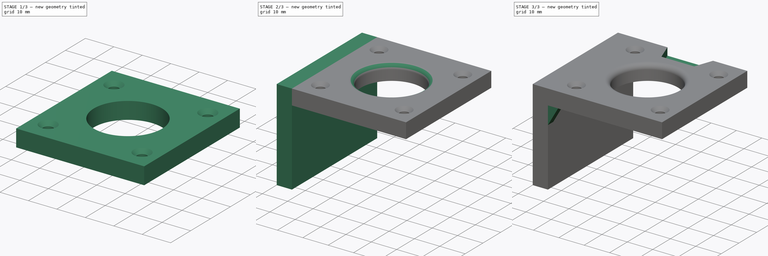
[diagram: build sequence overview — one tinted view per stage of 3, left to right]
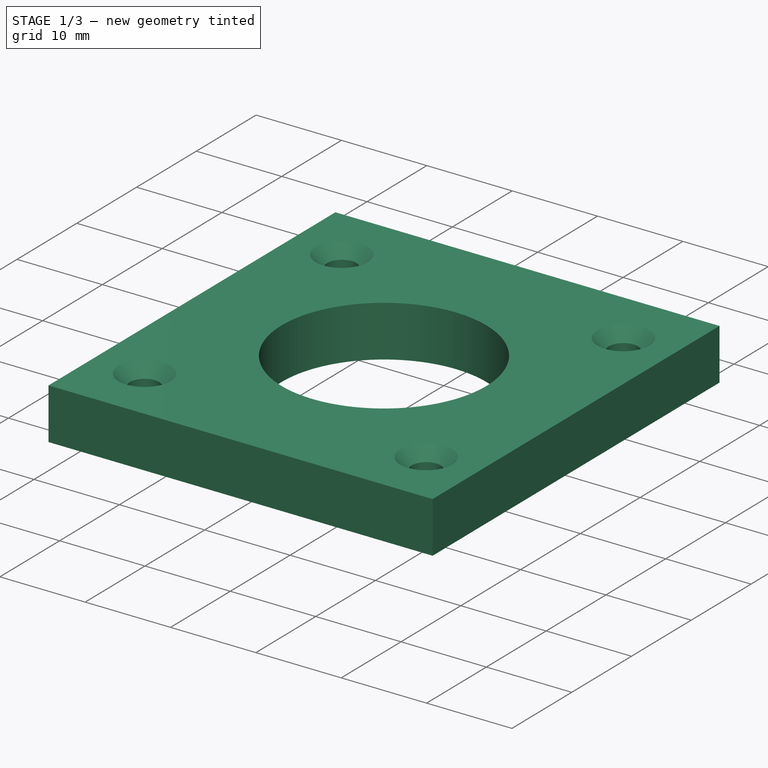
[diagram: stage 1 of 3 — iso view after this stage's code; geometry added in this stage tinted green]
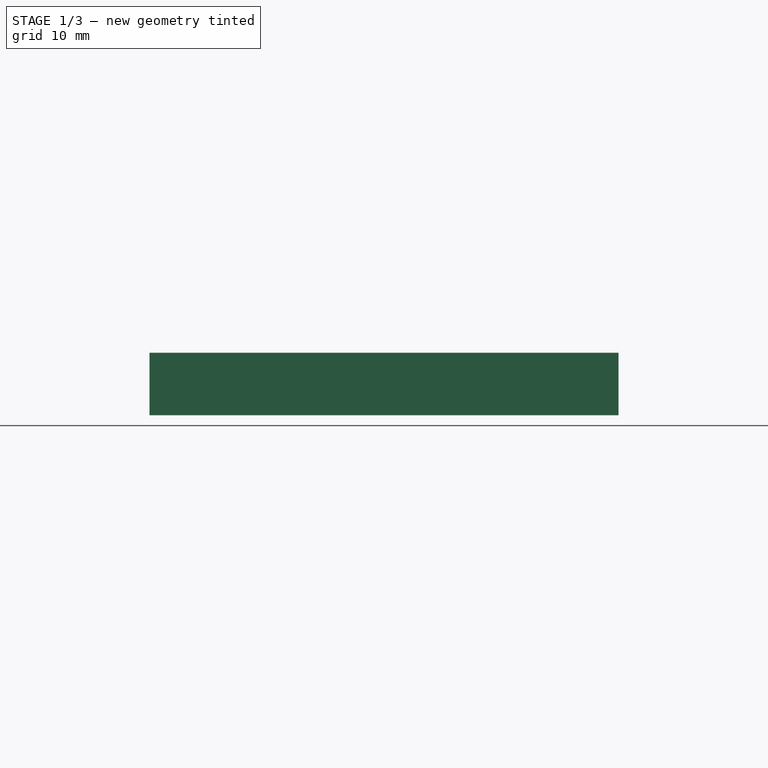
[diagram: stage 1 of 3 — front view after this stage's code; geometry added in this stage tinted green]
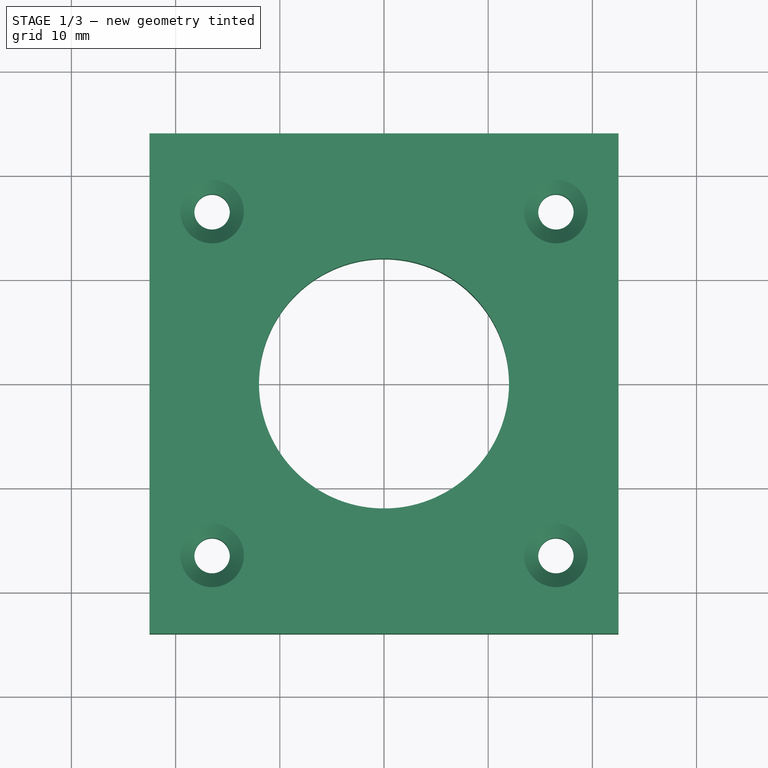
[diagram: stage 1 of 3 — top view after this stage's code; geometry added in this stage tinted green]
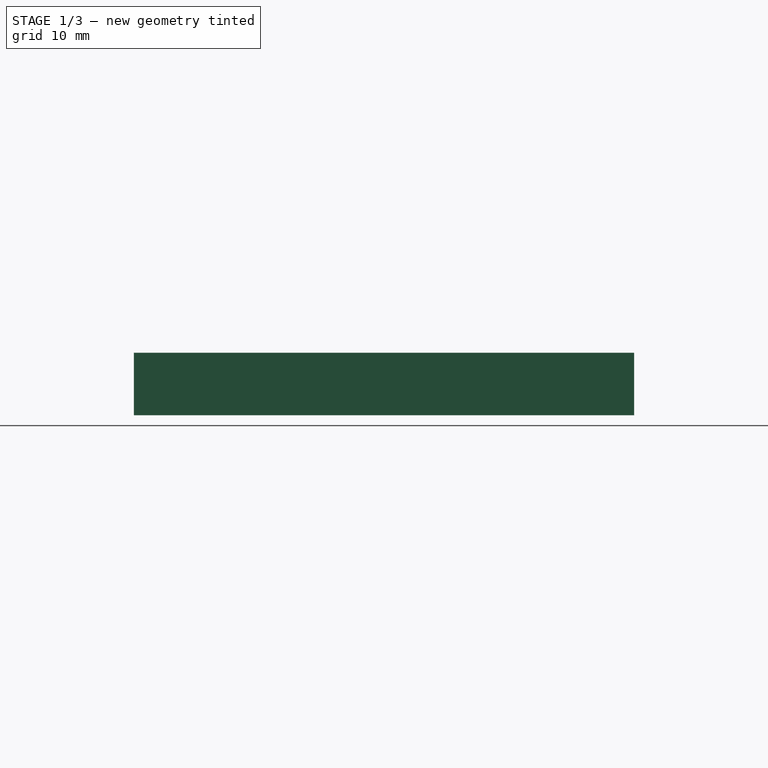
[diagram: stage 1 of 3 — right view after this stage's code; geometry added in this stage tinted green]
FCSTD DOCUMENT  (FreeCAD 0.22R38334 (Git))
Label: MH002
License: All rights reserved
LicenseURL: http://en.wikipedia.org/wiki/All_rights_reserved
objects: Sketcher::SketchObject×7, PartDesign::SubShapeBinder×4, PartDesign::Body×4, PartDesign::Pad×3, PartDesign::Pocket×2, PartDesign::Hole×1, PartDesign::Mirrored×1, PartDesign::Fillet×1, App::Part×1
note: 45 computed .brp shape members not serialized (recipe doc carries the construction recipe); baked Part::Feature solids carry a one-line shape summary decoded from their .brp

FEATURE [PartDesign::SubShapeBinder] Binder006
  BindCopyOnChange = 0
  BindMode = 0
  ClaimChildren = false
  Context = -> Part001 [Body005.Binder006.]
  Fuse = false
  MakeFace = true
  OffsetFill = false
  OffsetIntersection = false
  OffsetJoinType = 0
  OffsetOpenResult = false
  PartialLoad = false
  Relative = true
  Support = -> [Body004[Sketch008.]]
  _Version = 2
FEATURE [PartDesign::SubShapeBinder] Binder007
  BindCopyOnChange = 0
  BindMode = 0
  ClaimChildren = false
  Context = -> Part001 [Body006.Binder007.]
  Fuse = false
  MakeFace = true
  OffsetFill = false
  OffsetIntersection = false
  OffsetJoinType = 0
  OffsetOpenResult = false
  PartialLoad = false
  Relative = true
  Support = -> [Body004[Sketch008.]]
  _Version = 2
FEATURE [PartDesign::SubShapeBinder] Binder008
  BindCopyOnChange = 0
  BindMode = 2
  ClaimChildren = false
  Context = -> Part001 [Body007.Binder008.]
  Fuse = false
  MakeFace = true
  OffsetFill = false
  OffsetIntersection = false
  OffsetJoinType = 0
  OffsetOpenResult = false
  PartialLoad = false
  Placement = pos=(-135.5,-24,0) rot=(-0.57735,0.57735,-0.57735;2.0944rad)
  Relative = true
  _Version = 2
FEATURE [PartDesign::SubShapeBinder] Binder009
  BindCopyOnChange = 0
  BindMode = 2
  ClaimChildren = false
  Context = -> Part001 [Body007.Binder009.]
  Fuse = false
  MakeFace = true
  OffsetFill = false
  OffsetIntersection = false
  OffsetJoinType = 0
  OffsetOpenResult = false
  PartialLoad = false
  Placement = pos=(-135.5,-24,0) rot=(-0.57735,0.57735,-0.57735;2.0944rad)
  Relative = true
  _Version = 2
FEATURE [PartDesign::Body] Body007
  AllowCompound = false
  Group = -> [Binder008]
  Origin = -> Origin009
FEATURE [PartDesign::Pad] Pad003
  Direction = (0,0,1)
  Length = 6
  Length2 = 10
  Profile = -> Binder006
  Suppressed = false
  Type = 0
FEATURE [Sketcher::SketchObject] Sketch008
  AttachmentSupport = -> [XY_Plane006]
  FullyConstrained = true
  MakeInternals = false
  MapMode = 5
  sketch-geometry (5):
    g0: LineSegment StartX=-22.5 StartY=-24 StartZ=0 EndX=22.5 EndY=-24 EndZ=0
    g1: LineSegment StartX=22.5 StartY=-24 StartZ=0 EndX=22.5 EndY=24 EndZ=0
    g2: LineSegment StartX=22.5 StartY=24 StartZ=0 EndX=-22.5 EndY=24 EndZ=0
    g3: LineSegment StartX=-22.5 StartY=24 StartZ=0 EndX=-22.5 EndY=-24 EndZ=0
    g4: GeomPoint X=0 Y=0 Z=0
  constraints (12):
    c: Coincident(g0,g1)
    c: Coincident(g1,g2)
    c: Coincident(g2,g3)
    c: Coincident(g3,g0)
    c: Horizontal(g0)
    c: Horizontal(g2)
    c: Vertical(g1)
    c: Vertical(g3)
    c: Symmetric(g2,g0,g4)
    c: Coincident(g4,g-1)
    c: DistanceY(g3,g3) = 48
    c: DistanceX(g2,g2) = 45
FEATURE [PartDesign::Body] Body004  label="Master001"
  AllowCompound = false
  Group = -> [Sketch008]
  Origin = -> Origin006
FEATURE [Sketcher::SketchObject] Sketch009
  AttachmentSupport = -> [Pad003]
  FullyConstrained = true
  MakeInternals = false
  MapMode = 5
  Placement = pos=(0,0,6) rot=(0,0,1;0rad)
  sketch-geometry (9):
    g0: LineSegment StartX=-16.5 StartY=-16.5 StartZ=0 EndX=16.5 EndY=-16.5 EndZ=0
    g1: LineSegment StartX=16.5 StartY=-16.5 StartZ=0 EndX=16.5 EndY=16.5 EndZ=0
    g2: LineSegment StartX=16.5 StartY=16.5 StartZ=0 EndX=-16.5 EndY=16.5 EndZ=0
    g3: LineSegment StartX=-16.5 StartY=16.5 StartZ=0 EndX=-16.5 EndY=-16.5 EndZ=0
    g4: GeomPoint X=0 Y=0 Z=0
    g5: Circle CenterX=-16.5 CenterY=16.5 CenterZ=0 NormalX=0 NormalY=0 NormalZ=1 AngleXU=0 Radius=1.5
    g6: Circle CenterX=-16.5 CenterY=-16.5 CenterZ=0 NormalX=0 NormalY=0 NormalZ=1 AngleXU=0 Radius=1.5
    g7: Circle CenterX=16.5 CenterY=-16.5 CenterZ=0 NormalX=0 NormalY=0 NormalZ=1 AngleXU=0 Radius=1.5
    g8: Circle CenterX=16.5 CenterY=16.5 CenterZ=0 NormalX=0 NormalY=0 NormalZ=1 AngleXU=0 Radius=1.5
  constraints (20):
    c: Coincident(g0,g1)
    c: Coincident(g1,g2)
    c: Coincident(g2,g3)
    c: Coincident(g3,g0)
    c: Horizontal(g0)
    c: Horizontal(g2)
    c: Vertical(g1)
    c: Vertical(g3)
    c: Symmetric(g2,g0,g4)
    c: Coincident(g4,g-1)
    c: Equal(g2,g3)
    c: DistanceX(g2,g2) = 33
    c: Coincident(g5,g2)
    c: Coincident(g6,g0)
    c: Coincident(g7,g0)
    c: Coincident(g8,g1)
    c: Equal(g5,g8)
    c: Equal(g8,g7)
    c: Equal(g7,g6)
    c: Diameter(g5) = 3
FEATURE [PartDesign::Hole] Hole002
  BaseFeature = -> Pad003
  CustomThreadClearance = 0
  Depth = 120.592
  DepthType = 1
  Diameter = 3.4
  DrillForDepth = false
  DrillPoint = 1
  DrillPointAngle = 118
  HoleCutCountersinkAngle = 90
  HoleCutCustomValues = false
  HoleCutDepth = 0
  HoleCutDiameter = 6.1
  HoleCutType = 2
  ModelThread = false
  Profile = -> Sketch009
  Suppressed = false
  Tapered = false
  TaperedAngle = 90
  ThreadClass = 0
  ThreadDepth = 120.592
  ThreadDepthType = 0
  ThreadDirection = 0
  ThreadFit = 0
  ThreadSize = 9
  ThreadType = 1
  Threaded = false
  UseCustomThreadClearance = false
FEATURE [Sketcher::SketchObject] Sketch013
  AttachmentSupport = -> [Hole002]
  ExternalGeometry = -> [Sketch009]
  FullyConstrained = true
  MakeInternals = false
  MapMode = 5
  Placement = pos=(0,0,6) rot=(0,0,1;0rad)
  sketch-geometry (1):
    g0: Circle CenterX=-2e-16 CenterY=2e-16 CenterZ=0 NormalX=0 NormalY=0 NormalZ=1 AngleXU=0 Radius=12
  constraints (2):
    c: Symmetric(g-3,g-4,g0)
    c: Diameter(g0) = 24
FEATURE [PartDesign::Pocket] Pocket003
  BaseFeature = -> Hole002
  Direction = (0,0,-1)
  Length = 5
  Length2 = 5
  Profile = -> Sketch013
  ReferenceAxis = -> Sketch013 [N_Axis]
  Suppressed = false
  Type = 1
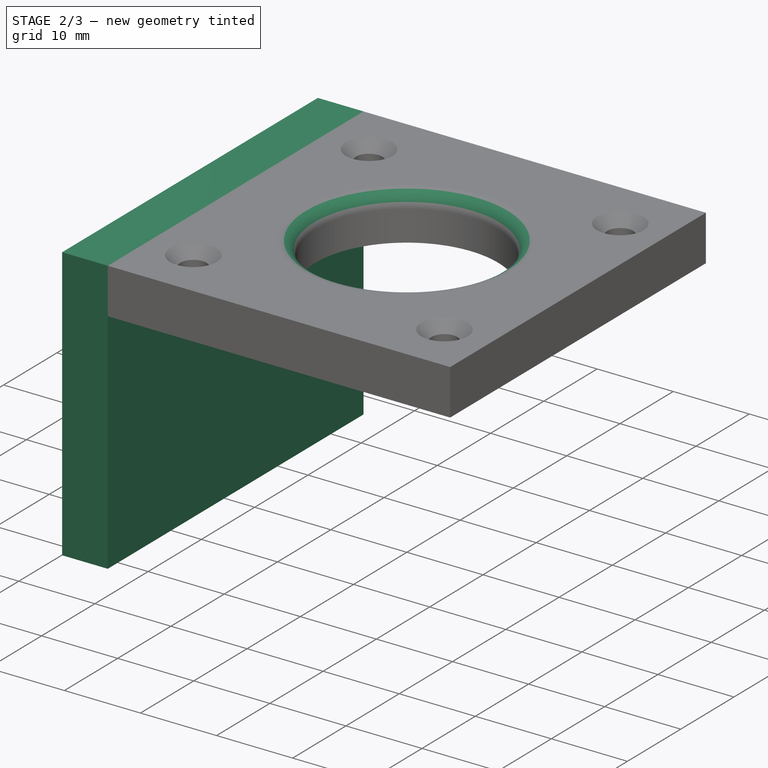
[diagram: stage 2 of 3 — iso view after this stage's code; geometry added in this stage tinted green]
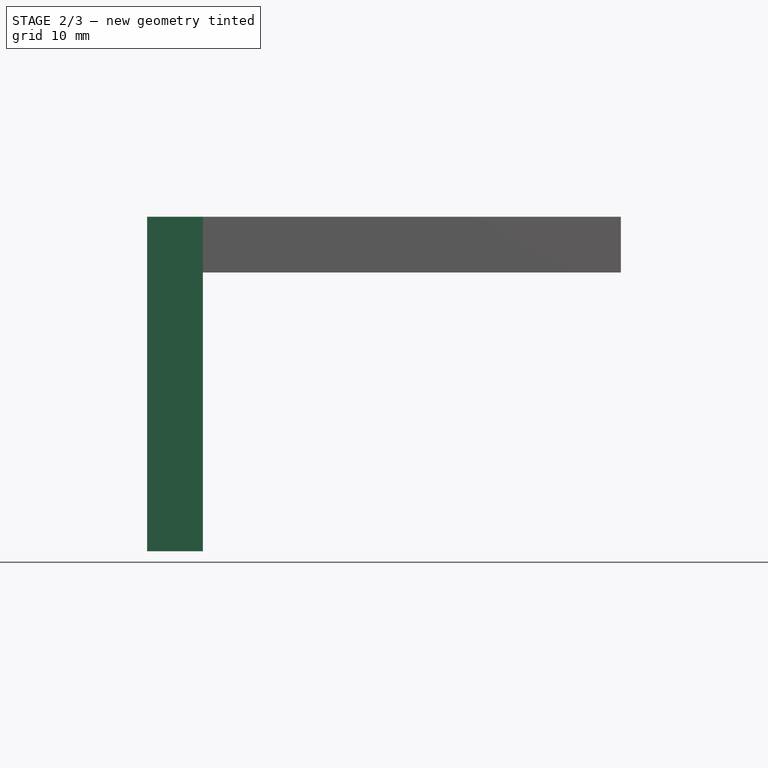
[diagram: stage 2 of 3 — front view after this stage's code; geometry added in this stage tinted green]
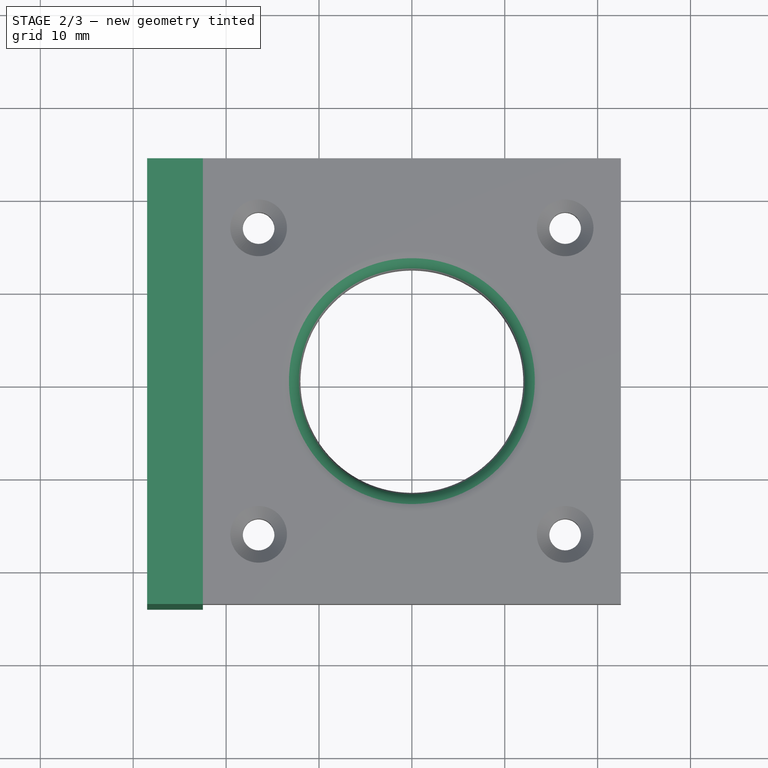
[diagram: stage 2 of 3 — top view after this stage's code; geometry added in this stage tinted green]
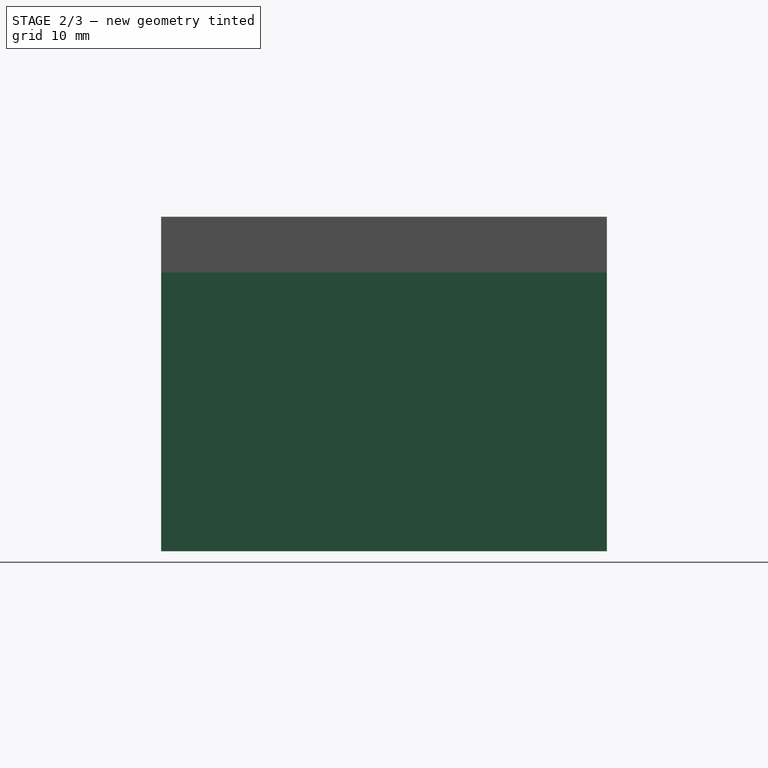
[diagram: stage 2 of 3 — right view after this stage's code; geometry added in this stage tinted green]
FEATURE [Sketcher::SketchObject] Sketch010
  AttachmentSupport = -> [Binder007]
  ExternalGeometry = -> [Binder007]
  FullyConstrained = true
  MakeInternals = false
  MapMode = 5
  sketch-geometry (4):
    g0: LineSegment StartX=-22.5 StartY=24 StartZ=0 EndX=-28.5 EndY=24 EndZ=0
    g1: LineSegment StartX=-28.5 StartY=24 StartZ=0 EndX=-28.5 EndY=-24 EndZ=0
    g2: LineSegment StartX=-28.5 StartY=-24 StartZ=0 EndX=-22.5 EndY=-24 EndZ=0
    g3: LineSegment StartX=-22.5 StartY=-24 StartZ=0 EndX=-22.5 EndY=24 EndZ=0
  constraints (10):
    c: Coincident(g0,g1)
    c: Coincident(g1,g2)
    c: Coincident(g2,g3)
    c: Coincident(g3,g0)
    c: Horizontal(g0)
    c: Horizontal(g2)
    c: Vertical(g1)
    c: Coincident(g0,g-3)
    c: Coincident(g2,g-3)
    c: DistanceX(g2,g2) = 6
FEATURE [PartDesign::Pad] Pad004
  Direction = (0,0,1)
  Length = 6
  Length2 = 30
  Profile = -> Sketch010
  ReferenceAxis = -> Sketch010 [N_Axis]
  Suppressed = false
  Type = 4
FEATURE [PartDesign::Fillet] Fillet001
  Base = -> Pocket003 [Edge21]
  BaseFeature = -> Pocket003
  Radius = 2
  SupportTransform = false
  Suppressed = false
  UseAllEdges = false
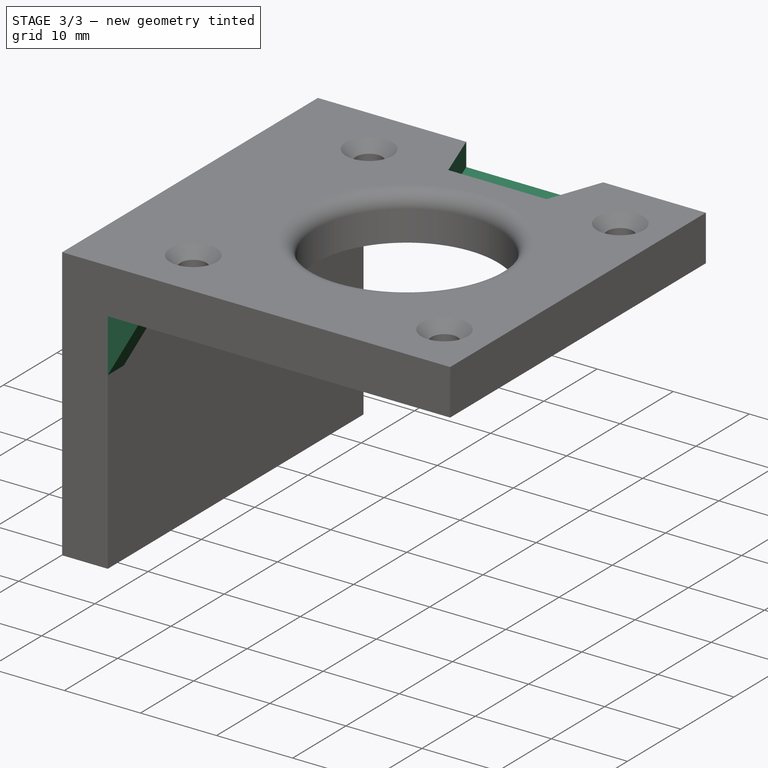
[diagram: stage 3 of 3 — iso view after this stage's code; geometry added in this stage tinted green]
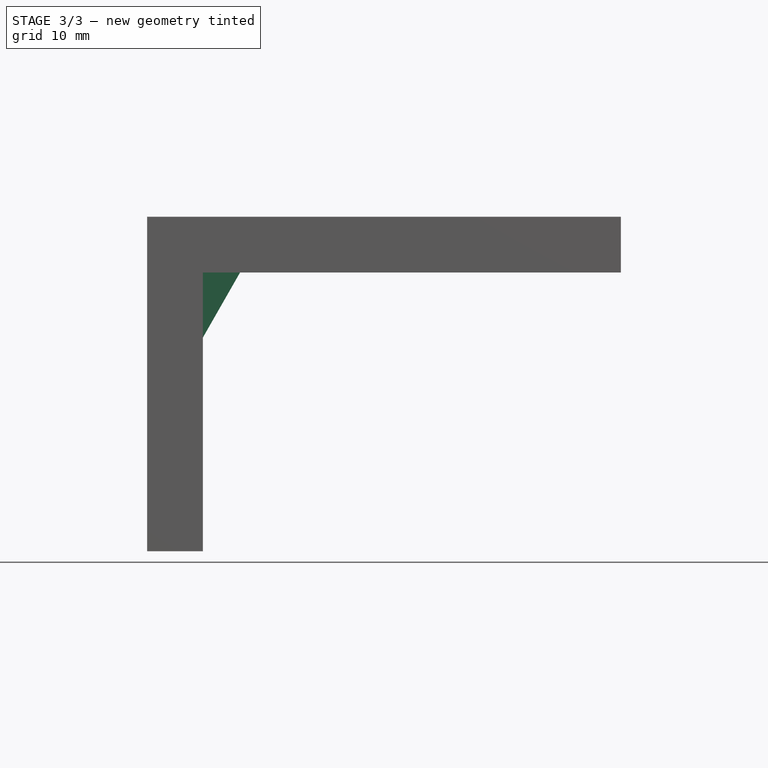
[diagram: stage 3 of 3 — front view after this stage's code; geometry added in this stage tinted green]
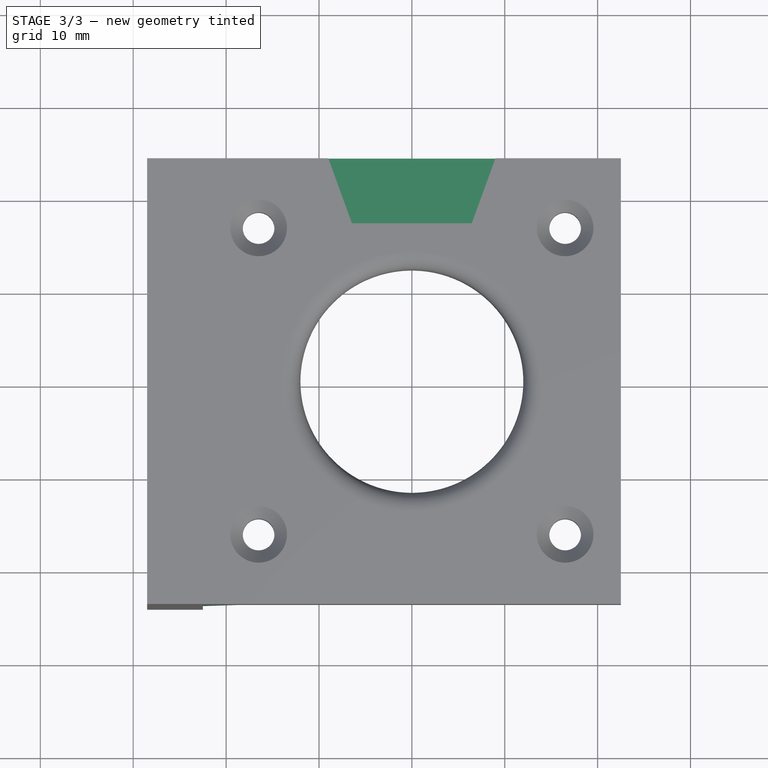
[diagram: stage 3 of 3 — top view after this stage's code; geometry added in this stage tinted green]
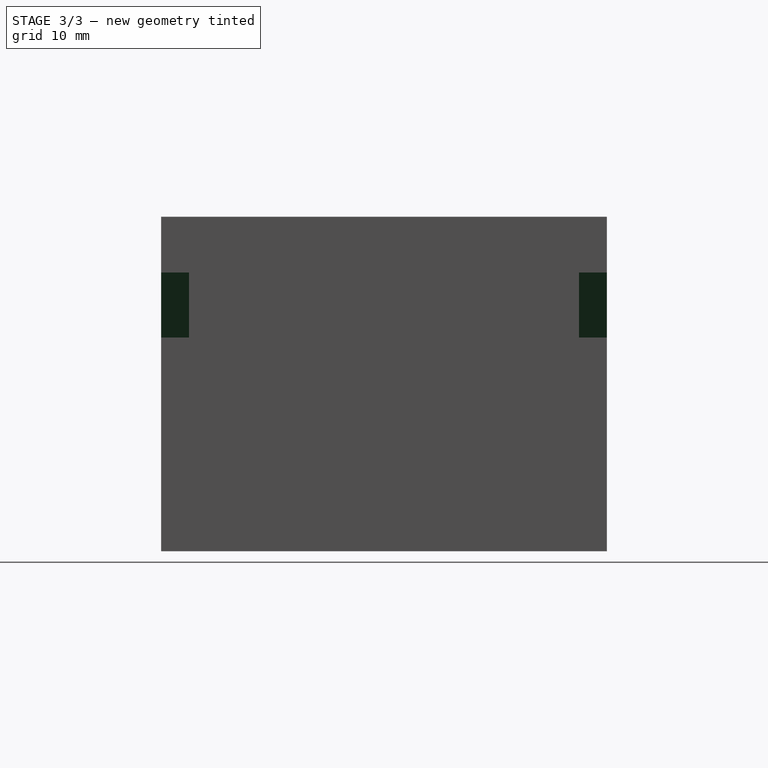
[diagram: stage 3 of 3 — right view after this stage's code; geometry added in this stage tinted green]
FEATURE [Sketcher::SketchObject] Sketch011
  AttachmentSupport = -> [Pad004]
  ExternalGeometry = -> [Binder007,Pad004]
  FullyConstrained = true
  MakeInternals = false
  MapMode = 5
  Placement = pos=(0,-24,0) rot=(1,0,0;1.5708rad)
  sketch-geometry (3):
    g0: LineSegment StartX=-22.5 StartY=0 StartZ=0 EndX=-22.5 EndY=-7 EndZ=0
    g1: LineSegment StartX=-22.5 StartY=-7 StartZ=0 EndX=-18.5 EndY=0 EndZ=0
    g2: LineSegment StartX=-18.5 StartY=0 StartZ=0 EndX=-22.5 EndY=0 EndZ=0
  constraints (9):
    c: Coincident(g0,g1)
    c: Coincident(g1,g2)
    c: DistanceX(g2,g2) = 4
    c: DistanceY(g0,g0) = 7
    c: PointOnObject(g0,g-4)
    c: Coincident(g2,g0)
    c: PointOnObject(g0,g-4)
    c: Horizontal(g2)
    c: PointOnObject(g1,g-1)
FEATURE [PartDesign::Pad] Pad005
  BaseFeature = -> Pad004
  Direction = (0,-1,2e-16)
  Length = 3
  Length2 = 10
  Profile = -> Sketch011
  ReferenceAxis = -> Sketch011 [N_Axis]
  Reversed = true
  Suppressed = false
  Type = 0
FEATURE [PartDesign::Mirrored] Mirrored001
  BaseFeature = -> Pad005
  MirrorPlane = -> XZ_Plane008
  Originals = -> [Pad005]
  Suppressed = false
  TransformMode = 0
FEATURE [Sketcher::SketchObject] Sketch014
  AttachmentSupport = -> [Fillet001]
  ExternalGeometry = -> [Fillet001]
  FullyConstrained = true
  MakeInternals = false
  MapMode = 5
  Placement = pos=(0,0,6) rot=(0,0,1;0rad)
  sketch-geometry (4):
    g0: LineSegment StartX=-9 StartY=24 StartZ=0 EndX=-6.45221 EndY=17 EndZ=0
    g1: LineSegment StartX=-6.45221 StartY=17 StartZ=0 EndX=6.45221 EndY=17 EndZ=0
    g2: LineSegment StartX=6.45221 StartY=17 StartZ=0 EndX=9 EndY=24 EndZ=0
    g3: LineSegment StartX=9 StartY=24 StartZ=0 EndX=-9 EndY=24 EndZ=0
  constraints (10):
    c: PointOnObject(g0,g-4)
    c: Coincident(g0,g1)
    c: Coincident(g1,g2)
    c: Coincident(g2,g3)
    c: Coincident(g3,g0)
    c: Angle(g1,g0) = 1.91986
    c: DistanceX(g3,g3) = 18
    c: Distance(g3,g1) = 7
    c: Symmetric(g0,g1,g-2)
    c: Symmetric(g0,g2,g-2)
FEATURE [PartDesign::Pocket] Pocket004
  BaseFeature = -> Fillet001
  Direction = (0,0,-1)
  Length = 3
  Length2 = 5
  Profile = -> Sketch014
  ReferenceAxis = -> Sketch014 [N_Axis]
  Suppressed = false
  Type = 0
FEATURE [PartDesign::Body] Body005
  AllowCompound = false
  Group = -> [Binder006,Pad003,Sketch009,Hole002,Sketch013,Pocket003,Fillet001,Sketch014,Pocket004]
  Origin = -> Origin007
  Tip = -> Pocket004
FEATURE [Sketcher::SketchObject] Sketch016
  AttachmentSupport = -> [Binder009]
  ExternalGeometry = -> [Binder009]
  FullyConstrained = true
  MakeInternals = false
  MapMode = 5
  Placement = pos=(-21,-24,3.81e-14) rot=(0.57735,-0.57735,0.57735;4.18879rad)
  sketch-geometry (2):
    g0: Circle CenterX=-32.5 CenterY=12.5 CenterZ=0 NormalX=0 NormalY=0 NormalZ=1 AngleXU=0 Radius=2
    g1: Circle CenterX=-8 CenterY=25.8112 CenterZ=0 NormalX=0 NormalY=0 NormalZ=1 AngleXU=0 Radius=2.65
  constraints (4):
    c: Coincident(g0,g-4)
    c: PointOnObject(g-4,g0)
    c: Coincident(g1,g-3)
    c: PointOnObject(g-3,g1)
FEATURE [PartDesign::Body] Body006
  AllowCompound = false
  Group = -> [Binder007,Sketch010,Pad004,Sketch011,Pad005,Mirrored001,Binder009,Sketch016]
  Origin = -> Origin008
  Tip = -> Mirrored001
FEATURE [App::Part] Part001  label="MH002"
  Group = -> [Body004,Body005,Body006,Body007]
  Origin = -> Origin005
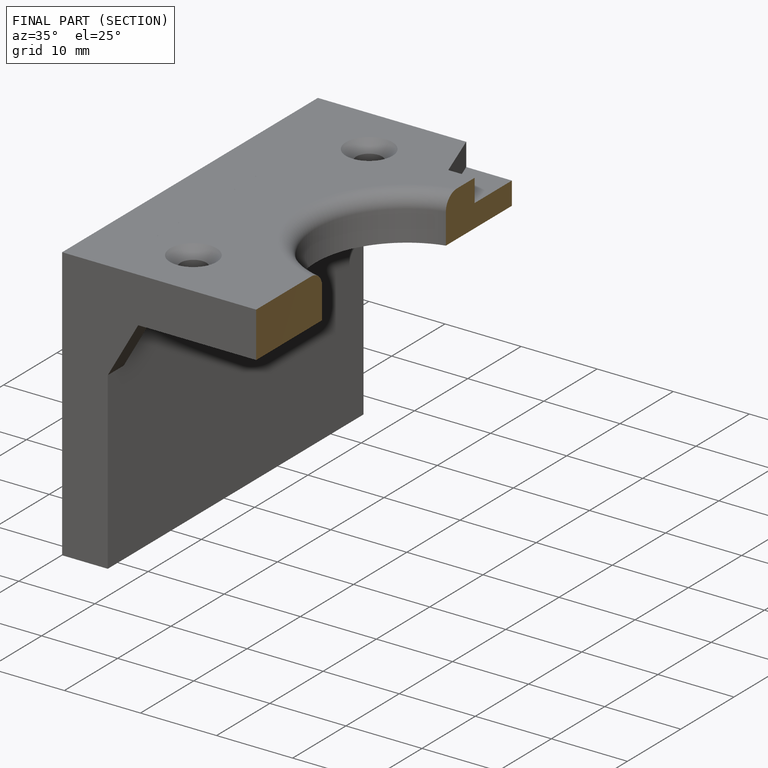
[diagram: finished part — half-section view (interior)]
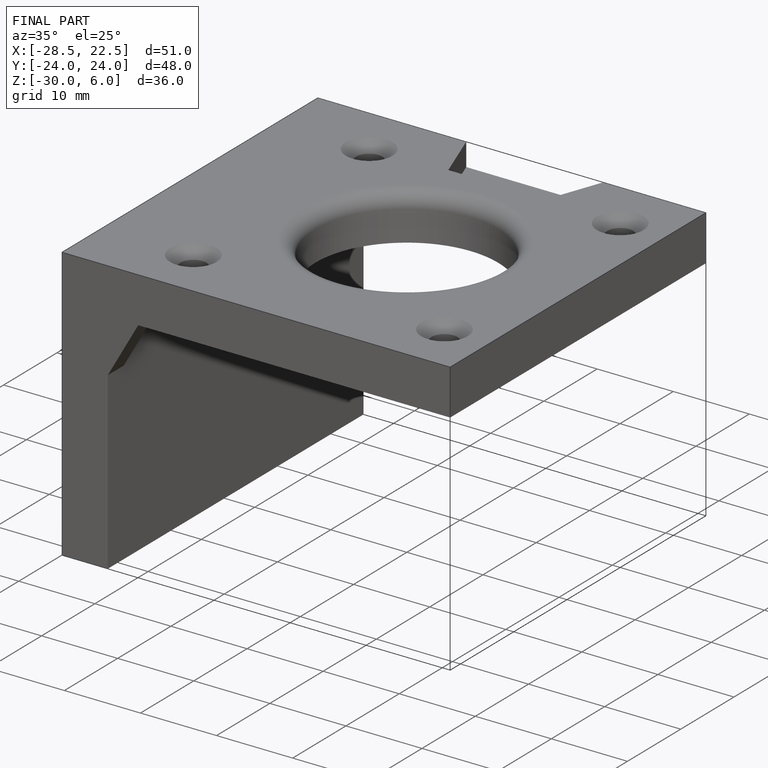
[diagram: finished part — iso view with bounding-box wireframe]
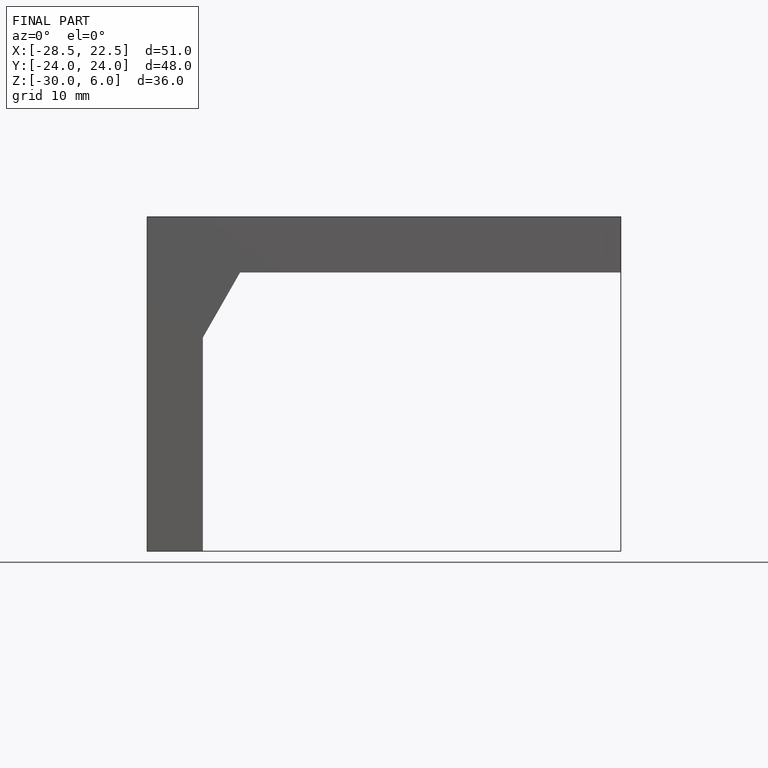
[diagram: finished part — front view with bounding-box wireframe]
